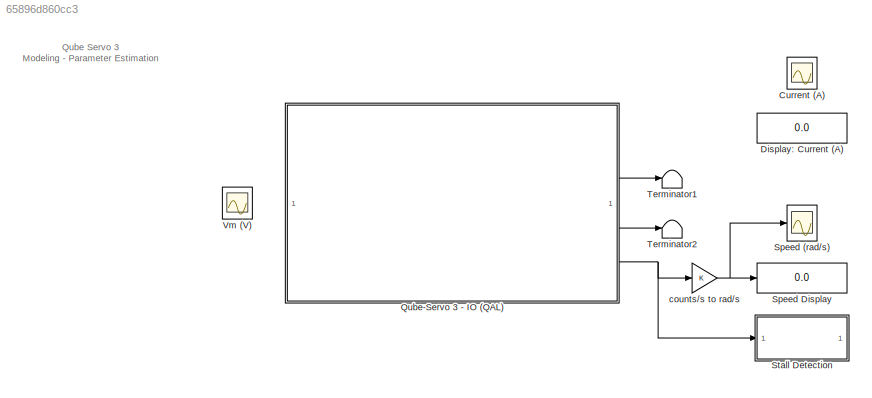
MODEL slx_65896d860cc3
KIND model
CONFIG AbsTol = auto
CONFIG EnableMultiTasking = on
CONFIG FixedStep = 0.002
CONFIG MaxStep = auto
CONFIG MinStep = auto
CONFIG RelTol = 1e-3
CONFIG SampleTimeConstraint = Unconstrained
CONFIG SolverName = ode1
CONFIG StartTime = 0.0
CONFIG StopTime = inf
BLOCK [Scope] Current (A)
  Floating = off
  NumInputPorts = 1
  ScopeSpecificationString = Simulink.scopes.TimeScopeBlockCfg('CurrentConfiguration', extmgr.ConfigurationSet(extmgr.Configuration('Core','General UI',true),extmgr.Configuration('Core','Source UI',true),extmgr.Configuration('Sources','WiredSimulink',true,'DataLoggingVariableName','ScopeData1'),extmgr.Configuration('Visuals','Time Domain',true),extmgr.Configuration('Tools','Plot Navigation',true),extmgr.Configuration('Tools',...<+86ch>
BLOCK [Display] Display: Current (A)
  Decimation = 50
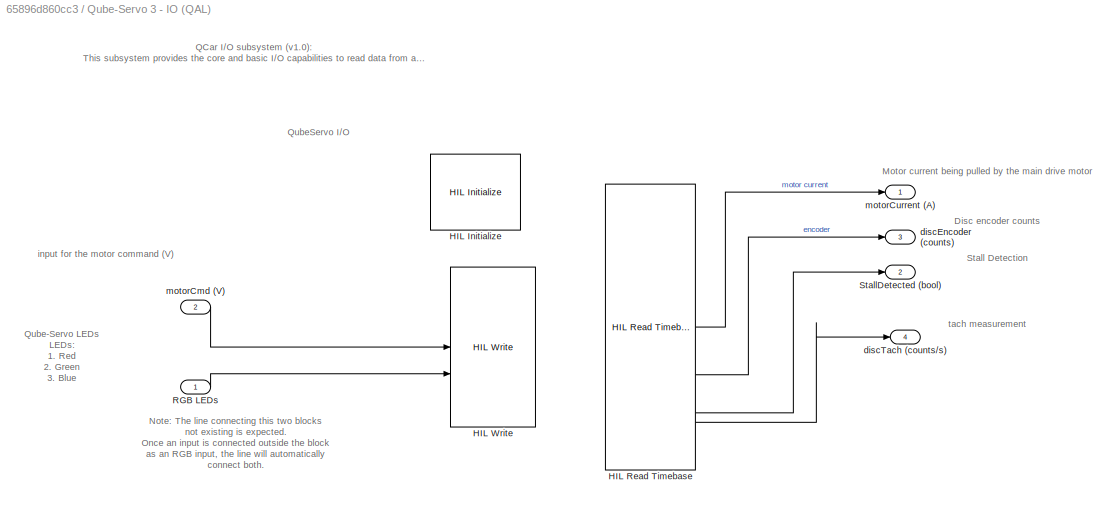
BLOCK [SubSystem] Qube-Servo 3 - IO (QAL)
  CopyFcn = set_param(gcbh,'LinkStatus','none');
  UserDataPersistent = on
BLOCK [Reference] Qube-Servo 3 - IO (QAL)/HIL Initialize  REF=quarc_library/Data Acquisition/Generic/Configuration/HIL Initialize
  AttributesFormatString = %<object_name> (%<board_type>-%<board_number>)
  SourceBlock = quarc_library/Data Acquisition/Generic/Configuration/HIL Initialize
  SourceProductName = QUARC Targets
  SourceType = HIL Initialize
  UserDataPersistent = on
BLOCK [Reference] Qube-Servo 3 - IO (QAL)/HIL Read Timebase  REF=quarc_library/Data Acquisition/Generic/Timebases/HIL Read
Timebase
  AttributesFormatString = (%<object_name>)
  SourceBlock = quarc_library/Data Acquisition/Generic/Timebases/HIL Read\nTimebase
  SourceProductName = QUARC Targets
  SourceType = HIL Read Timebase
  UserDataPersistent = on
BLOCK [Reference] Qube-Servo 3 - IO (QAL)/HIL Write  REF=quarc_library/Data Acquisition/Generic/Immediate I//O/HIL Write
  AttributesFormatString = (%<object_name>)
  SourceBlock = quarc_library/Data Acquisition/Generic/Immediate I//O/HIL Write
  SourceProductName = QUARC Targets
  SourceType = HIL Write
  UserDataPersistent = on
BLOCK [Inport] Qube-Servo 3 - IO (QAL)/RGB LEDs
BLOCK [Outport] Qube-Servo 3 - IO (QAL)/StallDetected (bool)
  Port = 2
  VectorParamsAs1DForOutWhenUnconnected = off
BLOCK [Outport] Qube-Servo 3 - IO (QAL)/discEncoder (counts)
  Port = 3
  VectorParamsAs1DForOutWhenUnconnected = off
BLOCK [Outport] Qube-Servo 3 - IO (QAL)/discTach (counts//s)
  Port = 4
  VectorParamsAs1DForOutWhenUnconnected = off
BLOCK [Inport] Qube-Servo 3 - IO (QAL)/motorCmd (V)
  Port = 2
BLOCK [Outport] Qube-Servo 3 - IO (QAL)/motorCurrent (A)
  VectorParamsAs1DForOutWhenUnconnected = off
BLOCK [Scope] Speed (rad//s)
  Floating = off
  NumInputPorts = 1
  ScopeSpecificationString = Simulink.scopes.TimeScopeBlockCfg('CurrentConfiguration', extmgr.ConfigurationSet(extmgr.Configuration('Core','General UI',true),extmgr.Configuration('Core','Source UI',true),extmgr.Configuration('Sources','WiredSimulink',true,'DataLogging',true,'DataLoggingSaveFormat','Array','DataLoggingVariableName','speed'),extmgr.Configuration('Visuals','Time Domain',true,'SerializedDisplays',{struct('MinYLim...<+1560ch>
BLOCK [Display] Speed Display
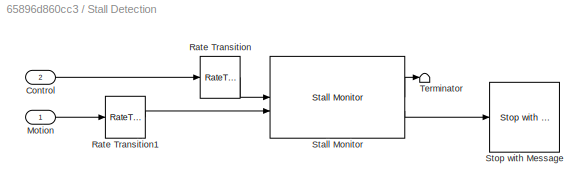
BLOCK [SubSystem] Stall Detection
BLOCK [Inport] Stall Detection/Control
  Port = 2
BLOCK [Inport] Stall Detection/Motion
BLOCK [RateTransition] Stall Detection/Rate Transition
BLOCK [RateTransition] Stall Detection/Rate Transition1
BLOCK [Reference] Stall Detection/Stall Monitor  REF=quarc_library/Discrete/Stall Monitor
  SourceBlock = quarc_library/Discrete/Stall Monitor
  SourceProductName = QUARC Targets
  SourceType = Stall Monitor
BLOCK [Reference] Stall Detection/Stop with Message  REF=quarc_library/Sinks/Error Handling/Stop with Message
  AttributesFormatString = "%<message>"
  SourceBlock = quarc_library/Sinks/Error Handling/Stop with Message
  SourceProductName = QUARC Targets
  SourceType = Stop with Message
BLOCK [Terminator] Stall Detection/Terminator
BLOCK [Terminator] Terminator1
BLOCK [Terminator] Terminator2
BLOCK [Scope] Vm (V)
  Floating = off
  NumInputPorts = 1
  ScopeSpecificationString = Simulink.scopes.TimeScopeBlockCfg('CurrentConfiguration', extmgr.ConfigurationSet(extmgr.Configuration('Core','General UI',true),extmgr.Configuration('Core','Source UI',true),extmgr.Configuration('Sources','WiredSimulink',true,'DataLoggingVariableName','voltage','DataLogging',true,'DataLoggingSaveFormat','Array'),extmgr.Configuration('Visuals','Time Domain',true,'SerializedDisplays',{struct('MinYL...<+1452ch>
BLOCK [Gain] counts//s to rad//s
ANNOTATION (root): Qube Servo 3 Modeling - Parameter Estimation
ANNOTATION Qube-Servo 3 - IO (QAL): QCar I/O subsystem (v1.0): This subsystem provides the core and basic I/O capabilities to read data from and write data to the Qube Servo. The HIL Initialize block configures the IO settings, and the HIL Write and Read blocks are used for the actual IO.
ANNOTATION Qube-Servo 3 - IO (QAL): Disc encoder counts
ANNOTATION Qube-Servo 3 - IO (QAL): Stall Detection
ANNOTATION Qube-Servo 3 - IO (QAL): tach measurement
ANNOTATION Qube-Servo 3 - IO (QAL): Motor current being pulled by the main drive motor
ANNOTATION Qube-Servo 3 - IO (QAL): Qube-Servo LEDs LEDs: 1. Red 2. Green 3. Blue
ANNOTATION Qube-Servo 3 - IO (QAL): input for the motor command (V)
ANNOTATION Qube-Servo 3 - IO (QAL): Note: The line connecting this two blocks not existing is expected. Once an input is connected outside the block as an RGB input, the line will automatically connect both.
ANNOTATION Qube-Servo 3 - IO (QAL): QubeServo I/O
LINE Qube-Servo 3 - IO (QAL):2 -> Terminator1:1
LINE Qube-Servo 3 - IO (QAL):3 -> Terminator2:1
NET Qube-Servo 3 - IO (QAL):4 -> Stall Detection:1, counts//s to rad//s:1
LINE Stall Detection/Control:1 -> Stall Detection/Rate Transition:1
LINE Stall Detection/Motion:1 -> Stall Detection/Rate Transition1:1
LINE Stall Detection/Rate Transition1:1 -> Stall Detection/Stall Monitor:2
LINE Stall Detection/Rate Transition:1 -> Stall Detection/Stall Monitor:1
LINE Stall Detection/Stall Monitor:1 -> Stall Detection/Terminator:1
LINE Stall Detection/Stall Monitor:2 -> Stall Detection/Stop with Message:1
NET counts//s to rad//s:1 -> Speed (rad//s):1, Speed Display:1
note: NET lines group one-source signal fan-out (src -> all destinations, sorted); 1:1 wires keep LINE
